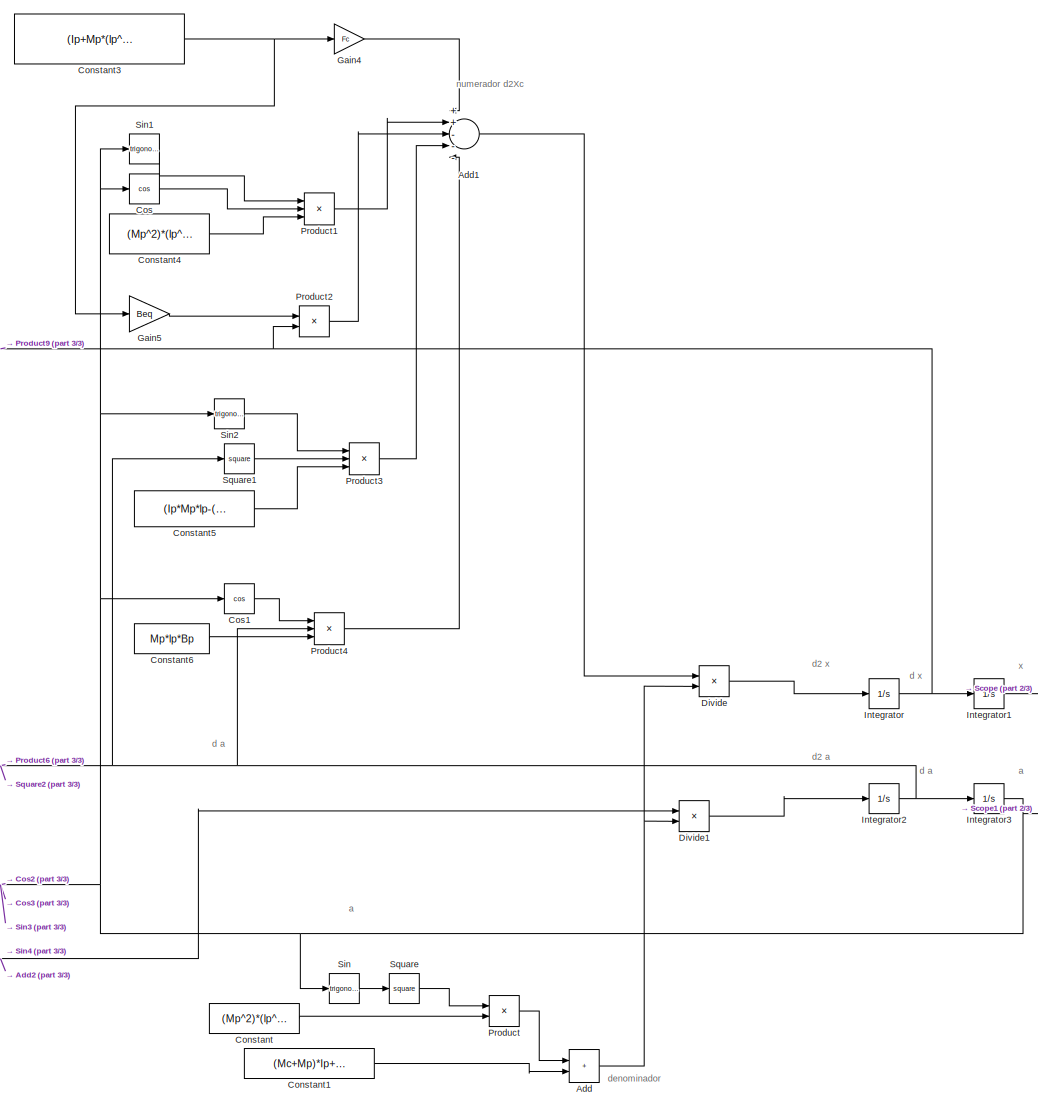
[diagram: root canvas - part 1/3, top right region]
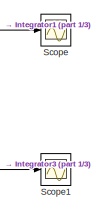
[diagram: root canvas - part 2/3, middle right region]
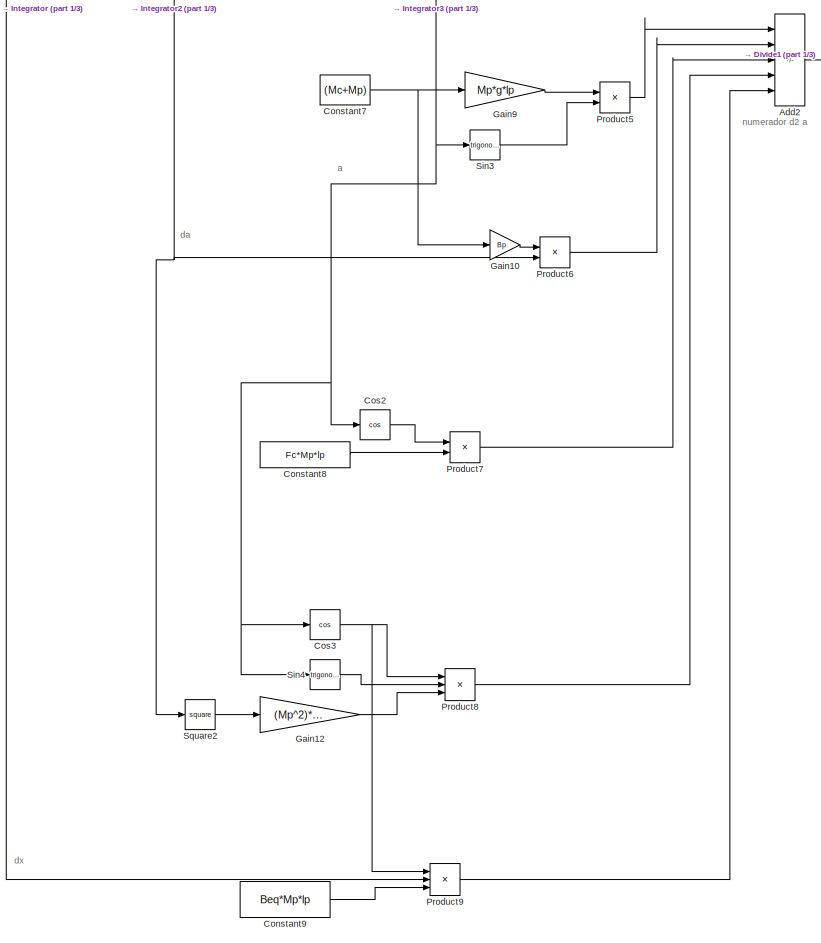
[diagram: root canvas - part 3/3, bottom left region]
MODEL slx_f56624a245a2
KIND model
CONFIG AbsTol = auto
CONFIG EnableMultiTasking = off
CONFIG FixedStep = auto
CONFIG MaxStep = 0.001
CONFIG MinStep = auto
CONFIG RelTol = 1e-5
CONFIG SampleTimeConstraint = Unconstrained
CONFIG SolverName = VariableStepAuto
CONFIG StartTime = 0.0
CONFIG StopTime = 20
BLOCK [Sum] Add
  IconShape = rectangular
BLOCK [Sum] Add1
  Inputs = ++---
BLOCK [Sum] Add2
  IconShape = rectangular
  Inputs = +-+--
BLOCK [Constant] Constant
  Value = (Mp^2)*(lp^2)
BLOCK [Constant] Constant1
  Value = (Mc+Mp)*Ip+Mc*Mp*(lp^2)
BLOCK [Constant] Constant3
  Value = (Ip+Mp*(lp^2))
BLOCK [Constant] Constant4
  Value = (Mp^2)*(lp^2)*g
BLOCK [Constant] Constant5
  Value = (Ip*Mp*lp-(Mp^2)*(lp^3))
BLOCK [Constant] Constant6
  Value = Mp*lp*Bp
BLOCK [Constant] Constant7
  Value = (Mc+Mp)
BLOCK [Constant] Constant8
  Value = Fc*Mp*lp
BLOCK [Constant] Constant9
  Value = Beq*Mp*lp
BLOCK [Trigonometry] Cos
  Operator = cos
BLOCK [Trigonometry] Cos1
  Operator = cos
BLOCK [Trigonometry] Cos2
  Operator = cos
BLOCK [Trigonometry] Cos3
  Operator = cos
BLOCK [Product] Divide
  Inputs = */
BLOCK [Product] Divide1
  Inputs = */
BLOCK [Gain] Gain10
  Gain = Bp
BLOCK [Gain] Gain12
  Gain = (Mp^2)*(lp^2)
BLOCK [Gain] Gain4
  Gain = Fc
BLOCK [Gain] Gain5
  Gain = Beq
BLOCK [Gain] Gain9
  Gain = Mp*g*lp
BLOCK [Integrator] Integrator
BLOCK [Integrator] Integrator1
BLOCK [Integrator] Integrator2
BLOCK [Integrator] Integrator3
  InitialCondition = deg2rad(1)
BLOCK [Product] Product
BLOCK [Product] Product1
  Inputs = 3
BLOCK [Product] Product2
BLOCK [Product] Product3
  Inputs = 3
BLOCK [Product] Product4
  Inputs = 3
BLOCK [Product] Product5
BLOCK [Product] Product6
BLOCK [Product] Product7
BLOCK [Product] Product8
  Inputs = 3
BLOCK [Product] Product9
  Inputs = 3
BLOCK [Scope] Scope
  Floating = off
  NumInputPorts = 1
  ScopeSpecificationString = Simulink.scopes.TimeScopeBlockCfg('CurrentConfiguration', extmgr.ConfigurationSet(extmgr.Configuration('Core','General UI',true),extmgr.Configuration('Core','Source UI',true),extmgr.Configuration('Sources','WiredSimulink',true),extmgr.Configuration('Visuals','Time Domain',true,'SerializedDisplays',{struct('MinYLimReal','-0.0013','MaxYLimReal','0.00104','YLabelReal','','MinYLimMag','0.00000','MaxYL...<+1451ch>
BLOCK [Scope] Scope1
  Floating = off
  NumInputPorts = 1
  ScopeSpecificationString = Simulink.scopes.TimeScopeBlockCfg('CurrentConfiguration', extmgr.ConfigurationSet(extmgr.Configuration('Core','General UI',true),extmgr.Configuration('Core','Source UI',true),extmgr.Configuration('Sources','WiredSimulink',true,'DataLoggingVariableName','ScopeData1'),extmgr.Configuration('Visuals','Time Domain',true,'SerializedDisplays',{struct('MinYLimReal','-0.0193','MaxYLimReal','0.02154','YLabe...<+1488ch>
BLOCK [Trigonometry] Sin
BLOCK [Trigonometry] Sin1
BLOCK [Trigonometry] Sin2
BLOCK [Trigonometry] Sin3
BLOCK [Trigonometry] Sin4
BLOCK [Math] Square
  Operator = square
BLOCK [Math] Square1
  Operator = square
BLOCK [Math] Square2
  Operator = square
ANNOTATION (root): a
ANNOTATION (root): d a
ANNOTATION (root): d x
ANNOTATION (root): d2 a
ANNOTATION (root): d2 x
ANNOTATION (root): da
ANNOTATION (root): denominador
ANNOTATION (root): dx
ANNOTATION (root): numerador d2 a
ANNOTATION (root): numerador d2Xc
ANNOTATION (root): x
LINE Add1:1 -> Divide:1
LINE Add2:1 -> Divide1:1
NET Add:1 -> Divide1:2, Divide:2
LINE Constant1:1 -> Add:2
NET Constant3:1 -> Gain4:1, Gain5:1
LINE Constant4:1 -> Product1:3
LINE Constant5:1 -> Product3:3
LINE Constant6:1 -> Product4:3
NET Constant7:1 -> Gain10:1, Gain9:1
LINE Constant8:1 -> Product7:2
LINE Constant9:1 -> Product9:3
LINE Constant:1 -> Product:2
LINE Cos1:1 -> Product4:1
LINE Cos2:1 -> Product7:1
NET Cos3:1 -> Product8:1, Product9:1
LINE Cos:1 -> Product1:2
LINE Divide1:1 -> Integrator2:1
LINE Divide:1 -> Integrator:1
LINE Gain10:1 -> Product6:1
LINE Gain12:1 -> Product8:3
LINE Gain4:1 -> Add1:1
LINE Gain5:1 -> Product2:1
LINE Gain9:1 -> Product5:1
LINE Integrator1:1 -> Scope:1
NET Integrator2:1 -> Integrator3:1, Product4:2, Product6:2, Square1:1, Square2:1
NET Integrator3:1 -> Cos1:1, Cos2:1, Cos3:1, Cos:1, Scope1:1, Sin1:1, Sin2:1, Sin3:1, Sin4:1, Sin:1
NET Integrator:1 -> Integrator1:1, Product2:2, Product9:2
LINE Product1:1 -> Add1:2
LINE Product2:1 -> Add1:3
LINE Product3:1 -> Add1:4
LINE Product4:1 -> Add1:5
LINE Product5:1 -> Add2:1
LINE Product6:1 -> Add2:2
LINE Product7:1 -> Add2:3
LINE Product8:1 -> Add2:4
LINE Product9:1 -> Add2:5
LINE Product:1 -> Add:1
LINE Sin1:1 -> Product1:1
LINE Sin2:1 -> Product3:1
LINE Sin3:1 -> Product5:2
LINE Sin4:1 -> Product8:2
LINE Sin:1 -> Square:1
LINE Square1:1 -> Product3:2
LINE Square2:1 -> Gain12:1
LINE Square:1 -> Product:1
note: NET lines group one-source signal fan-out (src -> all destinations, sorted); 1:1 wires keep LINE
